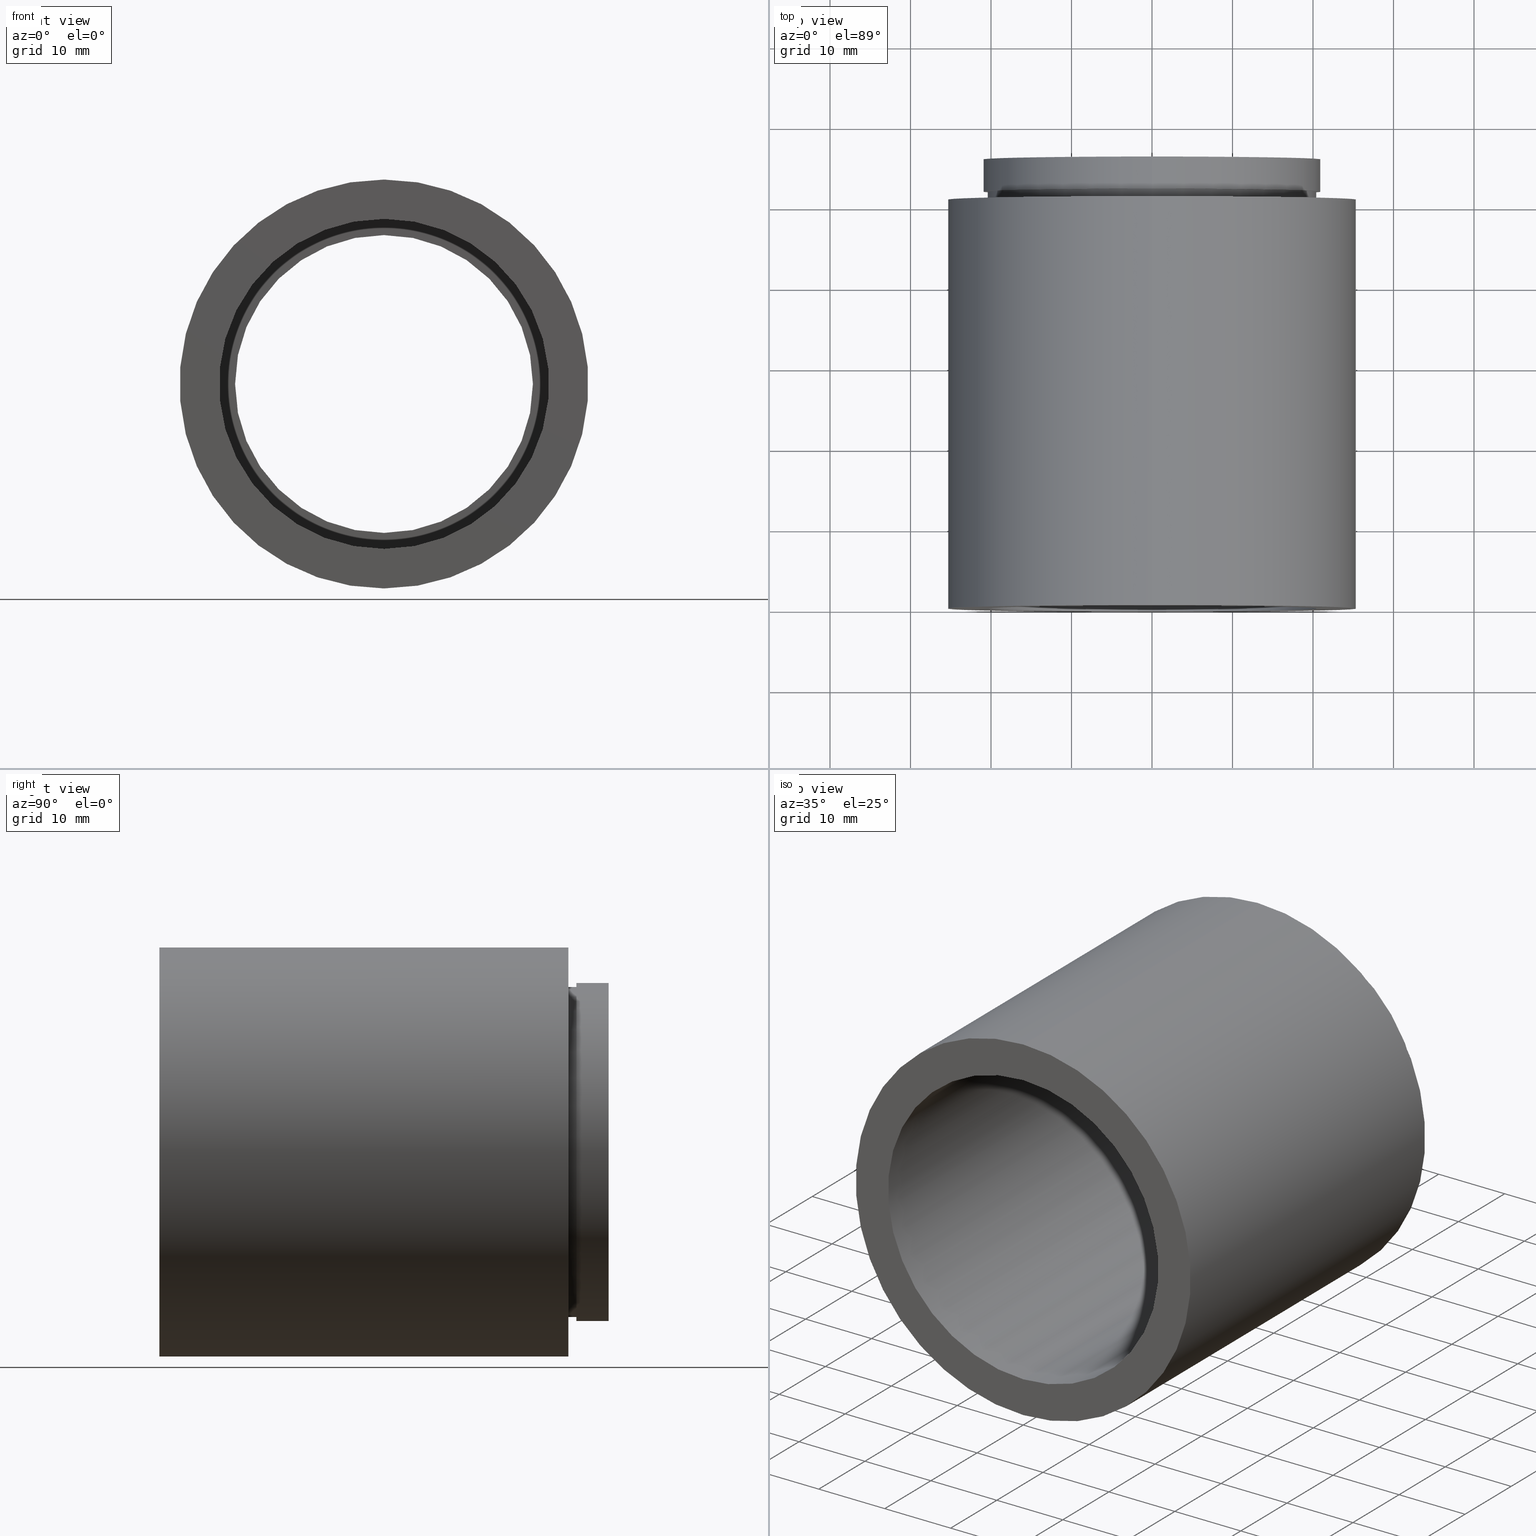
[diagram: canonical four-view strip — front | top / right | iso, engineering-drawing reading convention]
A machine part, canonical four-view strip (front | top / right | iso — engineering-drawing reading convention). The complete STEP part file that produces these views, byte-faithful:
ISO-10303-21;
HEADER;
FILE_DESCRIPTION (( 'STEP AP214' ),
    '1' );
FILE_NAME ('503023.STEP',
    '2019-09-05T05:34:05',
    ( '' ),
    ( '' ),
    'SwSTEP 2.0',
    'SolidWorks 2016',
    '' );
FILE_SCHEMA (( 'AUTOMOTIVE_DESIGN' ));
ENDSEC;

DATA;
#1 = ORIENTED_EDGE ( 'NONE', *, *, #191, .F. ) ;
#2 = VERTEX_POINT ( 'NONE', #121 ) ;
#3 =( LENGTH_UNIT ( ) NAMED_UNIT ( * ) SI_UNIT ( .MILLI., .METRE. ) );
#4 = PRESENTATION_LAYER_ASSIGNMENT (  '', '', ( #137 ) ) ;
#5 = LINE ( 'NONE', #564, #296 ) ;
#6 =( NAMED_UNIT ( * ) PLANE_ANGLE_UNIT ( ) SI_UNIT ( $, .RADIAN. ) );
#7 = MECHANICAL_DESIGN_GEOMETRIC_PRESENTATION_REPRESENTATION (  '', ( #200 ), #393 ) ;
#8 = CARTESIAN_POINT ( 'NONE',  ( 0.0000000000000000000, 51.79999999999998300, 0.0000000000000000000 ) ) ;
#9 = DIRECTION ( 'NONE',  ( 0.0000000000000000000, -1.000000000000000000, 0.0000000000000000000 ) ) ;
#10 = AXIS2_PLACEMENT_3D ( 'NONE', #438, #198, #152 ) ;
#11 = ORIENTED_EDGE ( 'NONE', *, *, #155, .T. ) ;
#12 = ORIENTED_EDGE ( 'NONE', *, *, #153, .F. ) ;
#13 = DIRECTION ( 'NONE',  ( 0.0000000000000000000, -0.0000000000000000000, -1.000000000000000000 ) ) ;
#14 = CYLINDRICAL_SURFACE ( 'NONE', #559, 18.50000000000001100 ) ;
#15 = DIRECTION ( 'NONE',  ( 0.0000000000000000000, 0.0000000000000000000, 1.000000000000000000 ) ) ;
#16 = CARTESIAN_POINT ( 'NONE',  ( 0.0000000000000000000, 55.79999999999999000, 0.0000000000000000000 ) ) ;
#17 = MECHANICAL_DESIGN_GEOMETRIC_PRESENTATION_REPRESENTATION (  '', ( #137 ), #573 ) ;
#18 = VERTEX_POINT ( 'NONE', #231 ) ;
#19 = ORIENTED_EDGE ( 'NONE', *, *, #624, .T. ) ;
#20 = CYLINDRICAL_SURFACE ( 'NONE', #346, 25.40000000000001600 ) ;
#21 = APPLICATION_PROTOCOL_DEFINITION ( 'draft international standard', 'automotive_design', 1998, #328 ) ;
#22 = DIRECTION ( 'NONE',  ( -0.0000000000000000000, 1.000000000000000000, -0.0000000000000000000 ) ) ;
#23 = DIRECTION ( 'NONE',  ( -0.0000000000000000000, 1.000000000000000000, -0.0000000000000000000 ) ) ;
#24 = ORIENTED_EDGE ( 'NONE', *, *, #351, .T. ) ;
#25 = DIRECTION ( 'NONE',  ( -0.0000000000000000000, 1.000000000000000000, -0.0000000000000000000 ) ) ;
#26 = VERTEX_POINT ( 'NONE', #278 ) ;
#27 = CIRCLE ( 'NONE', #140, 20.50000000000001100 ) ;
#28 = UNCERTAINTY_MEASURE_WITH_UNIT (LENGTH_MEASURE( 1.000000000000000100E-005 ), #461, 'distance_accuracy_value', 'NONE');
#29 = AXIS2_PLACEMENT_3D ( 'NONE', #350, #388, #580 ) ;
#30 = CARTESIAN_POINT ( 'NONE',  ( 0.0000000000000000000, 47.79999999999998300, 21.10000000000001200 ) ) ;
#31 = DIRECTION ( 'NONE',  ( 0.0000000000000000000, 0.0000000000000000000, 1.000000000000000000 ) ) ;
#32 = DIRECTION ( 'NONE',  ( -0.0000000000000000000, 1.000000000000000000, -0.0000000000000000000 ) ) ;
#33 = ORIENTED_EDGE ( 'NONE', *, *, #373, .T. ) ;
#34 = ORIENTED_EDGE ( 'NONE', *, *, #191, .T. ) ;
#35 = EDGE_CURVE ( 'NONE', #565, #611, #602, .T. ) ;
#36 = SURFACE_SIDE_STYLE ('',( #507 ) ) ;
#37 = SURFACE_STYLE_FILL_AREA ( #496 ) ;
#38 = DIRECTION ( 'NONE',  ( 0.0000000000000000000, 0.0000000000000000000, 1.000000000000000000 ) ) ;
#39 = ADVANCED_FACE ( 'NONE', ( #523, #392 ), #599, .F. ) ;
#40 = PRODUCT ( '503023', '503023', '', ( #192 ) ) ;
#41 = AXIS2_PLACEMENT_3D ( 'NONE', #609, #433, #92 ) ;
#42 = ADVANCED_FACE ( 'NONE', ( #293, #279 ), #504, .F. ) ;
#43 = VERTEX_POINT ( 'NONE', #460 ) ;
#44 =( GEOMETRIC_REPRESENTATION_CONTEXT ( 3 ) GLOBAL_UNCERTAINTY_ASSIGNED_CONTEXT ( ( #106 ) ) GLOBAL_UNIT_ASSIGNED_CONTEXT ( ( #96, #574, #398 ) ) REPRESENTATION_CONTEXT ( 'NONE', 'WORKASPACE' ) );
#45 = EDGE_CURVE ( 'NONE', #444, #450, #503, .T. ) ;
#46 = DIRECTION ( 'NONE',  ( -0.0000000000000000000, 1.000000000000000000, -0.0000000000000000000 ) ) ;
#47 =( NAMED_UNIT ( * ) SI_UNIT ( $, .STERADIAN. ) SOLID_ANGLE_UNIT ( ) );
#48 = EDGE_CURVE ( 'NONE', #610, #565, #479, .T. ) ;
#49 = DIRECTION ( 'NONE',  ( -0.0000000000000000000, 1.000000000000000000, -0.0000000000000000000 ) ) ;
#50 = CYLINDRICAL_SURFACE ( 'NONE', #404, 21.10000000000001200 ) ;
#51 = MECHANICAL_DESIGN_GEOMETRIC_PRESENTATION_REPRESENTATION (  '', ( #232 ), #285 ) ;
#52 = CARTESIAN_POINT ( 'NONE',  ( 0.0000000000000000000, 51.79999999999998300, 20.50000000000001100 ) ) ;
#53 = CIRCLE ( 'NONE', #54, 20.50000000000001400 ) ;
#54 = AXIS2_PLACEMENT_3D ( 'NONE', #615, #475, #441 ) ;
#55 = SURFACE_STYLE_FILL_AREA ( #538 ) ;
#56 =( LENGTH_UNIT ( ) NAMED_UNIT ( * ) SI_UNIT ( .MILLI., .METRE. ) );
#57 = CARTESIAN_POINT ( 'NONE',  ( 20.50000000000002100, 47.79999999999998300, 0.0000000000000000000 ) ) ;
#58 = DIRECTION ( 'NONE',  ( 0.0000000000000000000, -0.0000000000000000000, -1.000000000000000000 ) ) ;
#59 = ORIENTED_EDGE ( 'NONE', *, *, #386, .T. ) ;
#60 = CARTESIAN_POINT ( 'NONE',  ( 0.0000000000000000000, 50.79999999999998300, 0.0000000000000000000 ) ) ;
#61 = ORIENTED_EDGE ( 'NONE', *, *, #569, .T. ) ;
#62 = PRESENTATION_LAYER_ASSIGNMENT (  '', '', ( #246 ) ) ;
#63 = CIRCLE ( 'NONE', #596, 25.40000000000001300 ) ;
#64 = DIRECTION ( 'NONE',  ( 0.0000000000000000000, 0.0000000000000000000, 1.000000000000000000 ) ) ;
#65 = FACE_OUTER_BOUND ( 'NONE', #295, .T. ) ;
#66 = SURFACE_STYLE_USAGE ( .BOTH. , #330 ) ;
#67 =( GEOMETRIC_REPRESENTATION_CONTEXT ( 3 ) GLOBAL_UNCERTAINTY_ASSIGNED_CONTEXT ( ( #434 ) ) GLOBAL_UNIT_ASSIGNED_CONTEXT ( ( #3, #266, #261 ) ) REPRESENTATION_CONTEXT ( 'NONE', 'WORKASPACE' ) );
#68 = CARTESIAN_POINT ( 'NONE',  ( 0.0000000000000000000, 48.79999999999998300, 18.50000000000001100 ) ) ;
#69 = AXIS2_PLACEMENT_3D ( 'NONE', #138, #337, #472 ) ;
#70 = EDGE_LOOP ( 'NONE', ( #119, #163, #71, #135 ) ) ;
#71 = ORIENTED_EDGE ( 'NONE', *, *, #233, .T. ) ;
#72 = DIRECTION ( 'NONE',  ( 0.0000000000000000000, 0.0000000000000000000, 1.000000000000000000 ) ) ;
#73 = DIRECTION ( 'NONE',  ( -0.0000000000000000000, 1.000000000000000000, -0.0000000000000000000 ) ) ;
#74 = VECTOR ( 'NONE', #254, 1000.000000000000000 ) ;
#75 = EDGE_CURVE ( 'NONE', #188, #18, #236, .T. ) ;
#76 =( NAMED_UNIT ( * ) PLANE_ANGLE_UNIT ( ) SI_UNIT ( $, .RADIAN. ) );
#77 = DIRECTION ( 'NONE',  ( 0.0000000000000000000, 0.0000000000000000000, 1.000000000000000000 ) ) ;
#78 = FILL_AREA_STYLE ('',( #557 ) ) ;
#79 = CARTESIAN_POINT ( 'NONE',  ( 0.0000000000000000000, 161.3761669434274500, 18.50000000000001100 ) ) ;
#80 = STYLED_ITEM ( 'NONE', ( #132 ), #469 ) ;
#81 = PRESENTATION_STYLE_ASSIGNMENT (( #431 ) ) ;
#82 = AXIS2_PLACEMENT_3D ( 'NONE', #332, #23, #286 ) ;
#83 = DIRECTION ( 'NONE',  ( -0.0000000000000000000, 1.000000000000000000, -0.0000000000000000000 ) ) ;
#84 = ORIENTED_EDGE ( 'NONE', *, *, #624, .F. ) ;
#85 = CARTESIAN_POINT ( 'NONE',  ( 0.0000000000000000000, 161.3761669434274500, 0.0000000000000000000 ) ) ;
#86 = COLOUR_RGB ( '',1.000000000000000000, 1.000000000000000000, 1.000000000000000000 ) ;
#87 = AXIS2_PLACEMENT_3D ( 'NONE', #437, #347, #566 ) ;
#88 = ADVANCED_FACE ( 'NONE', ( #406 ), #50, .F. ) ;
#89 = CARTESIAN_POINT ( 'NONE',  ( 0.0000000000000000000, 55.79999999999999000, 0.0000000000000000000 ) ) ;
#90 = ADVANCED_FACE ( 'NONE', ( #463 ), #146, .F. ) ;
#91 = VERTEX_POINT ( 'NONE', #558 ) ;
#92 = DIRECTION ( 'NONE',  ( 0.0000000000000000000, 0.0000000000000000000, 1.000000000000000000 ) ) ;
#93 = ORIENTED_EDGE ( 'NONE', *, *, #569, .F. ) ;
#94 = CYLINDRICAL_SURFACE ( 'NONE', #220, 20.50000000000002100 ) ;
#95 =( GEOMETRIC_REPRESENTATION_CONTEXT ( 3 ) GLOBAL_UNCERTAINTY_ASSIGNED_CONTEXT ( ( #417 ) ) GLOBAL_UNIT_ASSIGNED_CONTEXT ( ( #168, #6, #540 ) ) REPRESENTATION_CONTEXT ( 'NONE', 'WORKASPACE' ) );
#96 =( LENGTH_UNIT ( ) NAMED_UNIT ( * ) SI_UNIT ( .MILLI., .METRE. ) );
#97 = DIRECTION ( 'NONE',  ( -0.0000000000000000000, 1.000000000000000000, -0.0000000000000000000 ) ) ;
#98 = ADVANCED_FACE ( 'NONE', ( #349 ), #395, .T. ) ;
#99 = DIRECTION ( 'NONE',  ( 0.0000000000000000000, 0.0000000000000000000, 1.000000000000000000 ) ) ;
#100 = EDGE_LOOP ( 'NONE', ( #514, #361 ) ) ;
#101 = CARTESIAN_POINT ( 'NONE',  ( 0.0000000000000000000, 55.79999999999999000, 0.0000000000000000000 ) ) ;
#102 = COLOUR_RGB ( '',1.000000000000000000, 1.000000000000000000, 1.000000000000000000 ) ;
#103 = AXIS2_PLACEMENT_3D ( 'NONE', #275, #178, #15 ) ;
#104 = DIRECTION ( 'NONE',  ( -0.0000000000000000000, 1.000000000000000000, -0.0000000000000000000 ) ) ;
#105 = AXIS2_PLACEMENT_3D ( 'NONE', #541, #9, #317 ) ;
#106 = UNCERTAINTY_MEASURE_WITH_UNIT (LENGTH_MEASURE( 1.000000000000000100E-005 ), #96, 'distance_accuracy_value', 'NONE');
#107 = EDGE_LOOP ( 'NONE', ( #172, #616 ) ) ;
#108 = ORIENTED_EDGE ( 'NONE', *, *, #418, .T. ) ;
#109 = FACE_OUTER_BOUND ( 'NONE', #440, .T. ) ;
#110 = DIRECTION ( 'NONE',  ( -0.0000000000000000000, 1.000000000000000000, -0.0000000000000000000 ) ) ;
#111 = VERTEX_POINT ( 'NONE', #244 ) ;
#112 = AXIS2_PLACEMENT_3D ( 'NONE', #419, #383, #141 ) ;
#113 = EDGE_LOOP ( 'NONE', ( #227, #108, #59, #368 ) ) ;
#114 = FILL_AREA_STYLE_COLOUR ( '', #447 ) ;
#115 = FACE_BOUND ( 'NONE', #127, .T. ) ;
#116 = FACE_OUTER_BOUND ( 'NONE', #464, .T. ) ;
#117 = VECTOR ( 'NONE', #110, 1000.000000000000000 ) ;
#118 =( NAMED_UNIT ( * ) PLANE_ANGLE_UNIT ( ) SI_UNIT ( $, .RADIAN. ) );
#119 = ORIENTED_EDGE ( 'NONE', *, *, #155, .F. ) ;
#120 = EDGE_CURVE ( 'NONE', #204, #188, #579, .T. ) ;
#121 = CARTESIAN_POINT ( 'NONE',  ( 0.0000000000000000000, 51.79999999999998300, 21.00000000000001400 ) ) ;
#122 = SURFACE_STYLE_USAGE ( .BOTH. , #230 ) ;
#123 = PRESENTATION_LAYER_ASSIGNMENT (  '', '', ( #520 ) ) ;
#124 = DIRECTION ( 'NONE',  ( 0.0000000000000000000, 0.0000000000000000000, 1.000000000000000000 ) ) ;
#125 = AXIS2_PLACEMENT_3D ( 'NONE', #344, #394, #99 ) ;
#126 = DIRECTION ( 'NONE',  ( 0.0000000000000000000, 0.0000000000000000000, 1.000000000000000000 ) ) ;
#127 = EDGE_LOOP ( 'NONE', ( #323, #546 ) ) ;
#128 = EDGE_LOOP ( 'NONE', ( #93, #354, #567, #136 ) ) ;
#129 = CARTESIAN_POINT ( 'NONE',  ( 2.584004746200916600E-015, 161.3761669434274500, -21.10000000000001200 ) ) ;
#130 = CIRCLE ( 'NONE', #294, 21.10000000000001200 ) ;
#131 = EDGE_CURVE ( 'NONE', #26, #338, #5, .T. ) ;
#132 = PRESENTATION_STYLE_ASSIGNMENT (( #360 ) ) ;
#133 = CARTESIAN_POINT ( 'NONE',  ( 0.0000000000000000000, -2.775557561562891400E-014, 0.0000000000000000000 ) ) ;
#134 = FILL_AREA_STYLE ('',( #549 ) ) ;
#135 = ORIENTED_EDGE ( 'NONE', *, *, #473, .F. ) ;
#136 = ORIENTED_EDGE ( 'NONE', *, *, #75, .T. ) ;
#137 = STYLED_ITEM ( 'NONE', ( #500 ), #572 ) ;
#138 = CARTESIAN_POINT ( 'NONE',  ( 0.0000000000000000000, 161.3761669434274500, 0.0000000000000000000 ) ) ;
#139 = LINE ( 'NONE', #129, #593 ) ;
#140 = AXIS2_PLACEMENT_3D ( 'NONE', #284, #25, #512 ) ;
#141 = DIRECTION ( 'NONE',  ( 1.000000000000000000, 0.0000000000000000000, 0.0000000000000000000 ) ) ;
#142 = CARTESIAN_POINT ( 'NONE',  ( 0.0000000000000000000, -2.775557561562891400E-014, 0.0000000000000000000 ) ) ;
#143 = COLOUR_RGB ( '',1.000000000000000000, 1.000000000000000000, 1.000000000000000000 ) ;
#144 = DIRECTION ( 'NONE',  ( -0.0000000000000000000, 1.000000000000000000, -0.0000000000000000000 ) ) ;
#145 = CIRCLE ( 'NONE', #505, 25.40000000000002000 ) ;
#146 = CYLINDRICAL_SURFACE ( 'NONE', #69, 18.50000000000001100 ) ;
#147 = PRODUCT_RELATED_PRODUCT_CATEGORY ( 'part', '', ( #40 ) ) ;
#148 = FACE_BOUND ( 'NONE', #107, .T. ) ;
#149 = DIRECTION ( 'NONE',  ( -0.0000000000000000000, 1.000000000000000000, -0.0000000000000000000 ) ) ;
#150 = AXIS2_PLACEMENT_3D ( 'NONE', #133, #384, #511 ) ;
#151 = DIRECTION ( 'NONE',  ( 0.0000000000000000000, 0.0000000000000000000, 1.000000000000000000 ) ) ;
#152 = DIRECTION ( 'NONE',  ( 0.0000000000000000000, 0.0000000000000000000, 1.000000000000000000 ) ) ;
#153 = EDGE_CURVE ( 'NONE', #610, #111, #466, .T. ) ;
#154 = EDGE_LOOP ( 'NONE', ( #577, #595 ) ) ;
#155 = EDGE_CURVE ( 'NONE', #91, #252, #452, .T. ) ;
#156 = CARTESIAN_POINT ( 'NONE',  ( 0.0000000000000000000, 48.79999999999998300, 0.0000000000000000000 ) ) ;
#157 = PRESENTATION_STYLE_ASSIGNMENT (( #370 ) ) ;
#158 = CYLINDRICAL_SURFACE ( 'NONE', #493, 21.00000000000001400 ) ;
#159 = DIRECTION ( 'NONE',  ( 0.0000000000000000000, 0.0000000000000000000, 1.000000000000000000 ) ) ;
#160 = EDGE_CURVE ( 'NONE', #429, #252, #27, .T. ) ;
#161 = AXIS2_PLACEMENT_3D ( 'NONE', #449, #225, #169 ) ;
#162 = ORIENTED_EDGE ( 'NONE', *, *, #581, .T. ) ;
#163 = ORIENTED_EDGE ( 'NONE', *, *, #527, .T. ) ;
#164 = CARTESIAN_POINT ( 'NONE',  ( 0.0000000000000000000, 47.79999999999998300, 0.0000000000000000000 ) ) ;
#165 = AXIS2_PLACEMENT_3D ( 'NONE', #101, #202, #151 ) ;
#166 = CIRCLE ( 'NONE', #477, 20.50000000000002100 ) ;
#167 = DIRECTION ( 'NONE',  ( 0.0000000000000000000, 0.0000000000000000000, 1.000000000000000000 ) ) ;
#168 =( LENGTH_UNIT ( ) NAMED_UNIT ( * ) SI_UNIT ( .MILLI., .METRE. ) );
#169 = DIRECTION ( 'NONE',  ( 0.0000000000000000000, 0.0000000000000000000, 1.000000000000000000 ) ) ;
#170 = CARTESIAN_POINT ( 'NONE',  ( 0.0000000000000000000, 50.79999999999998300, 20.50000000000001400 ) ) ;
#171 = ORIENTED_EDGE ( 'NONE', *, *, #160, .F. ) ;
#172 = ORIENTED_EDGE ( 'NONE', *, *, #305, .F. ) ;
#173 = CIRCLE ( 'NONE', #82, 25.40000000000002000 ) ;
#174 = LINE ( 'NONE', #446, #311 ) ;
#175 =( GEOMETRIC_REPRESENTATION_CONTEXT ( 3 ) GLOBAL_UNCERTAINTY_ASSIGNED_CONTEXT ( ( #28 ) ) GLOBAL_UNIT_ASSIGNED_CONTEXT ( ( #461, #76, #322 ) ) REPRESENTATION_CONTEXT ( 'NONE', 'WORKASPACE' ) );
#176 = UNCERTAINTY_MEASURE_WITH_UNIT (LENGTH_MEASURE( 1.000000000000000100E-005 ), #508, 'distance_accuracy_value', 'NONE');
#177 = AXIS2_PLACEMENT_3D ( 'NONE', #250, #97, #439 ) ;
#178 = DIRECTION ( 'NONE',  ( -0.0000000000000000000, 1.000000000000000000, -0.0000000000000000000 ) ) ;
#179 = SURFACE_STYLE_FILL_AREA ( #134 ) ;
#180 = ORIENTED_EDGE ( 'NONE', *, *, #45, .F. ) ;
#181 = EDGE_CURVE ( 'NONE', #524, #414, #442, .T. ) ;
#182 = DIRECTION ( 'NONE',  ( -0.0000000000000000000, 1.000000000000000000, -0.0000000000000000000 ) ) ;
#183 = CARTESIAN_POINT ( 'NONE',  ( 2.571758278209443600E-015, 161.3761669434274500, -21.00000000000001400 ) ) ;
#184 = CIRCLE ( 'NONE', #371, 21.10000000000001200 ) ;
#185 =( NAMED_UNIT ( * ) SI_UNIT ( $, .STERADIAN. ) SOLID_ANGLE_UNIT ( ) );
#186 = AXIS2_PLACEMENT_3D ( 'NONE', #89, #203, #374 ) ;
#187 =( NAMED_UNIT ( * ) SI_UNIT ( $, .STERADIAN. ) SOLID_ANGLE_UNIT ( ) );
#188 = VERTEX_POINT ( 'NONE', #241 ) ;
#189 = ORIENTED_EDGE ( 'NONE', *, *, #233, .F. ) ;
#190 = SHAPE_DEFINITION_REPRESENTATION ( #490, #547 ) ;
#191 = EDGE_CURVE ( 'NONE', #196, #26, #173, .T. ) ;
#192 = PRODUCT_CONTEXT ( 'NONE', #328, 'mechanical' ) ;
#193 = CARTESIAN_POINT ( 'NONE',  ( 2.510525938252075300E-015, 161.3761669434274500, -20.50000000000001100 ) ) ;
#194 = DIRECTION ( 'NONE',  ( -0.0000000000000000000, 1.000000000000000000, -0.0000000000000000000 ) ) ;
#195 = ORIENTED_EDGE ( 'NONE', *, *, #45, .T. ) ;
#196 = VERTEX_POINT ( 'NONE', #607 ) ;
#197 = AXIS2_PLACEMENT_3D ( 'NONE', #57, #487, #58 ) ;
#198 = DIRECTION ( 'NONE',  ( -0.0000000000000000000, 1.000000000000000000, -0.0000000000000000000 ) ) ;
#199 = CIRCLE ( 'NONE', #150, 20.50000000000002100 ) ;
#200 = STYLED_ITEM ( 'NONE', ( #81 ), #90 ) ;
#201 = CARTESIAN_POINT ( 'NONE',  ( 0.0000000000000000000, -2.775557561562891400E-014, 20.50000000000002100 ) ) ;
#202 = DIRECTION ( 'NONE',  ( -0.0000000000000000000, 1.000000000000000000, -0.0000000000000000000 ) ) ;
#203 = DIRECTION ( 'NONE',  ( -0.0000000000000000000, 1.000000000000000000, -0.0000000000000000000 ) ) ;
#204 = VERTEX_POINT ( 'NONE', #30 ) ;
#205 = EDGE_LOOP ( 'NONE', ( #211, #61, #316, #483 ) ) ;
#206 = PRESENTATION_STYLE_ASSIGNMENT (( #66 ) ) ;
#207 = CARTESIAN_POINT ( 'NONE',  ( 0.0000000000000000000, 51.79999999999998300, 0.0000000000000000000 ) ) ;
#208 = CARTESIAN_POINT ( 'NONE',  ( 2.571758278209443600E-015, 55.79999999999999000, -21.00000000000001400 ) ) ;
#209 = PRESENTATION_LAYER_ASSIGNMENT (  '', '', ( #80 ) ) ;
#210 = DIRECTION ( 'NONE',  ( -0.0000000000000000000, 1.000000000000000000, -0.0000000000000000000 ) ) ;
#211 = ORIENTED_EDGE ( 'NONE', *, *, #351, .F. ) ;
#212 = EDGE_LOOP ( 'NONE', ( #162, #561 ) ) ;
#213 = CARTESIAN_POINT ( 'NONE',  ( 0.0000000000000000000, 47.79999999999998300, 0.0000000000000000000 ) ) ;
#214 = FACE_BOUND ( 'NONE', #154, .T. ) ;
#215 =( NAMED_UNIT ( * ) PLANE_ANGLE_UNIT ( ) SI_UNIT ( $, .RADIAN. ) );
#216 = EDGE_CURVE ( 'NONE', #524, #251, #199, .T. ) ;
#217 = CARTESIAN_POINT ( 'NONE',  ( 2.510525938252076500E-015, -2.775557561562891400E-014, -20.50000000000002100 ) ) ;
#218 = DIRECTION ( 'NONE',  ( 0.0000000000000000000, 0.0000000000000000000, 1.000000000000000000 ) ) ;
#219 = DIRECTION ( 'NONE',  ( 0.0000000000000000000, 0.0000000000000000000, 1.000000000000000000 ) ) ;
#220 = AXIS2_PLACEMENT_3D ( 'NONE', #277, #283, #375 ) ;
#221 = DIRECTION ( 'NONE',  ( -0.0000000000000000000, 1.000000000000000000, -0.0000000000000000000 ) ) ;
#222 = ORIENTED_EDGE ( 'NONE', *, *, #581, .F. ) ;
#223 = VECTOR ( 'NONE', #22, 1000.000000000000000 ) ;
#224 = AXIS2_PLACEMENT_3D ( 'NONE', #613, #149, #575 ) ;
#225 = DIRECTION ( 'NONE',  ( -0.0000000000000000000, 1.000000000000000000, -0.0000000000000000000 ) ) ;
#226 = CARTESIAN_POINT ( 'NONE',  ( 18.50000000000001100, 55.79999999999998300, 0.0000000000000000000 ) ) ;
#227 = ORIENTED_EDGE ( 'NONE', *, *, #276, .F. ) ;
#228 = ORIENTED_EDGE ( 'NONE', *, *, #420, .T. ) ;
#229 = EDGE_CURVE ( 'NONE', #338, #623, #63, .T. ) ;
#230 = SURFACE_SIDE_STYLE ('',( #274 ) ) ;
#231 = CARTESIAN_POINT ( 'NONE',  ( 2.584004746200916600E-015, 48.79999999999998300, -21.10000000000001200 ) ) ;
#232 = STYLED_ITEM ( 'NONE', ( #555 ), #343 ) ;
#233 = EDGE_CURVE ( 'NONE', #480, #429, #401, .T. ) ;
#234 = DIRECTION ( 'NONE',  ( 0.0000000000000000000, -1.000000000000000000, 0.0000000000000000000 ) ) ;
#235 = DIRECTION ( 'NONE',  ( 0.0000000000000000000, 0.0000000000000000000, 1.000000000000000000 ) ) ;
#236 = CIRCLE ( 'NONE', #554, 21.10000000000001200 ) ;
#237 =( LENGTH_UNIT ( ) NAMED_UNIT ( * ) SI_UNIT ( .MILLI., .METRE. ) );
#238 = EDGE_LOOP ( 'NONE', ( #339, #195, #369, #263 ) ) ;
#239 = SURFACE_STYLE_FILL_AREA ( #588 ) ;
#240 = EDGE_CURVE ( 'NONE', #2, #444, #300, .T. ) ;
#241 = CARTESIAN_POINT ( 'NONE',  ( 0.0000000000000000000, 48.79999999999998300, 21.10000000000001200 ) ) ;
#242 = CIRCLE ( 'NONE', #186, 21.00000000000001400 ) ;
#243 = CARTESIAN_POINT ( 'NONE',  ( 0.0000000000000000000, 48.79999999999998300, 0.0000000000000000000 ) ) ;
#244 = CARTESIAN_POINT ( 'NONE',  ( 2.265596578422604600E-015, 48.79999999999998300, -18.50000000000001100 ) ) ;
#245 = EDGE_LOOP ( 'NONE', ( #407, #1 ) ) ;
#246 = STYLED_ITEM ( 'NONE', ( #206 ), #547 ) ;
#247 =( NAMED_UNIT ( * ) PLANE_ANGLE_UNIT ( ) SI_UNIT ( $, .RADIAN. ) );
#248 = CYLINDRICAL_SURFACE ( 'NONE', #551, 21.00000000000001400 ) ;
#249 = APPLICATION_PROTOCOL_DEFINITION ( 'draft international standard', 'automotive_design', 1998, #380 ) ;
#250 = CARTESIAN_POINT ( 'NONE',  ( 0.0000000000000000000, 51.79999999999998300, 0.0000000000000000000 ) ) ;
#251 = VERTEX_POINT ( 'NONE', #201 ) ;
#252 = VERTEX_POINT ( 'NONE', #522 ) ;
#253 = CIRCLE ( 'NONE', #87, 25.40000000000001300 ) ;
#254 = DIRECTION ( 'NONE',  ( -0.0000000000000000000, 1.000000000000000000, -0.0000000000000000000 ) ) ;
#255 = CIRCLE ( 'NONE', #303, 20.50000000000001100 ) ;
#256 = ADVANCED_FACE ( 'NONE', ( #341, #214 ), #529, .F. ) ;
#257 = ORIENTED_EDGE ( 'NONE', *, *, #48, .T. ) ;
#258 = EDGE_CURVE ( 'NONE', #196, #623, #415, .T. ) ;
#259 = DIRECTION ( 'NONE',  ( -0.0000000000000000000, 1.000000000000000000, -0.0000000000000000000 ) ) ;
#260 = PRESENTATION_LAYER_ASSIGNMENT (  '', '', ( #358 ) ) ;
#261 =( NAMED_UNIT ( * ) SI_UNIT ( $, .STERADIAN. ) SOLID_ANGLE_UNIT ( ) );
#262 = AXIS2_PLACEMENT_3D ( 'NONE', #327, #462, #126 ) ;
#263 = ORIENTED_EDGE ( 'NONE', *, *, #489, .F. ) ;
#264 = DIRECTION ( 'NONE',  ( -0.0000000000000000000, 1.000000000000000000, -0.0000000000000000000 ) ) ;
#265 = DIRECTION ( 'NONE',  ( -0.0000000000000000000, 1.000000000000000000, -0.0000000000000000000 ) ) ;
#266 =( NAMED_UNIT ( * ) PLANE_ANGLE_UNIT ( ) SI_UNIT ( $, .RADIAN. ) );
#267 = MANIFOLD_SOLID_BREP ( '��ת1', #324 ) ;
#268 = ORIENTED_EDGE ( 'NONE', *, *, #181, .F. ) ;
#269 = DIRECTION ( 'NONE',  ( -0.0000000000000000000, 1.000000000000000000, -0.0000000000000000000 ) ) ;
#270 = EDGE_LOOP ( 'NONE', ( #486, #376, #345, #583 ) ) ;
#271 = DIRECTION ( 'NONE',  ( -0.0000000000000000000, 1.000000000000000000, -0.0000000000000000000 ) ) ;
#272 = DIRECTION ( 'NONE',  ( -0.0000000000000000000, 1.000000000000000000, -0.0000000000000000000 ) ) ;
#273 = AXIS2_PLACEMENT_3D ( 'NONE', #60, #366, #64 ) ;
#274 = SURFACE_STYLE_FILL_AREA ( #367 ) ;
#275 = CARTESIAN_POINT ( 'NONE',  ( 0.0000000000000000000, -2.775557561562891400E-014, 0.0000000000000000000 ) ) ;
#276 = EDGE_CURVE ( 'NONE', #111, #610, #498, .T. ) ;
#277 = CARTESIAN_POINT ( 'NONE',  ( 0.0000000000000000000, 161.3761669434274500, 0.0000000000000000000 ) ) ;
#278 = CARTESIAN_POINT ( 'NONE',  ( 0.0000000000000000000, -2.775557561562891400E-014, 25.40000000000002000 ) ) ;
#279 = FACE_OUTER_BOUND ( 'NONE', #100, .T. ) ;
#280 = EDGE_LOOP ( 'NONE', ( #84, #471 ) ) ;
#281 = VECTOR ( 'NONE', #144, 1000.000000000000000 ) ;
#282 = CIRCLE ( 'NONE', #161, 20.50000000000002100 ) ;
#283 = DIRECTION ( 'NONE',  ( -0.0000000000000000000, 1.000000000000000000, -0.0000000000000000000 ) ) ;
#284 = CARTESIAN_POINT ( 'NONE',  ( 0.0000000000000000000, 51.79999999999998300, 0.0000000000000000000 ) ) ;
#285 =( GEOMETRIC_REPRESENTATION_CONTEXT ( 3 ) GLOBAL_UNCERTAINTY_ASSIGNED_CONTEXT ( ( #409 ) ) GLOBAL_UNIT_ASSIGNED_CONTEXT ( ( #56, #215, #47 ) ) REPRESENTATION_CONTEXT ( 'NONE', 'WORKASPACE' ) );
#286 = DIRECTION ( 'NONE',  ( 0.0000000000000000000, 0.0000000000000000000, 1.000000000000000000 ) ) ;
#287 = VERTEX_POINT ( 'NONE', #578 ) ;
#288 = ADVANCED_FACE ( 'NONE', ( #612, #115 ), #481, .F. ) ;
#289 = SURFACE_SIDE_STYLE ('',( #179 ) ) ;
#290 = COLOUR_RGB ( '',1.000000000000000000, 1.000000000000000000, 1.000000000000000000 ) ;
#291 = LINE ( 'NONE', #362, #467 ) ;
#292 = DIRECTION ( 'NONE',  ( 0.0000000000000000000, 0.0000000000000000000, 1.000000000000000000 ) ) ;
#293 = FACE_BOUND ( 'NONE', #385, .T. ) ;
#294 = AXIS2_PLACEMENT_3D ( 'NONE', #164, #265, #219 ) ;
#295 = EDGE_LOOP ( 'NONE', ( #180, #33, #494, #445 ) ) ;
#296 = VECTOR ( 'NONE', #427, 1000.000000000000000 ) ;
#297 = AXIS2_PLACEMENT_3D ( 'NONE', #226, #234, #13 ) ;
#298 = ADVANCED_FACE ( 'NONE', ( #568 ), #424, .T. ) ;
#299 = EDGE_LOOP ( 'NONE', ( #495, #34, #413, #331 ) ) ;
#300 = CIRCLE ( 'NONE', #177, 21.00000000000001400 ) ;
#301 = CIRCLE ( 'NONE', #539, 21.10000000000001200 ) ;
#302 = DIRECTION ( 'NONE',  ( 0.0000000000000000000, 0.0000000000000000000, 1.000000000000000000 ) ) ;
#303 = AXIS2_PLACEMENT_3D ( 'NONE', #8, #485, #218 ) ;
#304 = CARTESIAN_POINT ( 'NONE',  ( 0.0000000000000000000, 55.79999999999999000, 0.0000000000000000000 ) ) ;
#305 = EDGE_CURVE ( 'NONE', #480, #91, #53, .T. ) ;
#306 = ORIENTED_EDGE ( 'NONE', *, *, #386, .F. ) ;
#307 = EDGE_LOOP ( 'NONE', ( #506, #436, #545, #618 ) ) ;
#308 = COLOUR_RGB ( '',1.000000000000000000, 1.000000000000000000, 1.000000000000000000 ) ;
#309 = CARTESIAN_POINT ( 'NONE',  ( 0.0000000000000000000, 161.3761669434274500, 0.0000000000000000000 ) ) ;
#310 = PLANE ( 'NONE',  #105 ) ;
#311 = VECTOR ( 'NONE', #104, 1000.000000000000000 ) ;
#312 = FILL_AREA_STYLE ('',( #352 ) ) ;
#313 = PLANE ( 'NONE',  #197 ) ;
#314 = MECHANICAL_DESIGN_GEOMETRIC_PRESENTATION_REPRESENTATION (  '', ( #520 ), #67 ) ;
#315 = CARTESIAN_POINT ( 'NONE',  ( 0.0000000000000000000, 161.3761669434274500, 0.0000000000000000000 ) ) ;
#316 = ORIENTED_EDGE ( 'NONE', *, *, #397, .T. ) ;
#317 = DIRECTION ( 'NONE',  ( 0.0000000000000000000, -0.0000000000000000000, -1.000000000000000000 ) ) ;
#318 = VECTOR ( 'NONE', #83, 1000.000000000000000 ) ;
#319 = EDGE_CURVE ( 'NONE', #287, #450, #488, .T. ) ;
#320 = CARTESIAN_POINT ( 'NONE',  ( 0.0000000000000000000, 161.3761669434274500, 0.0000000000000000000 ) ) ;
#321 = CARTESIAN_POINT ( 'NONE',  ( 2.265596578422604600E-015, 55.79999999999999000, -18.50000000000001100 ) ) ;
#322 =( NAMED_UNIT ( * ) SI_UNIT ( $, .STERADIAN. ) SOLID_ANGLE_UNIT ( ) );
#323 = ORIENTED_EDGE ( 'NONE', *, *, #160, .T. ) ;
#324 = CLOSED_SHELL ( 'NONE', ( #88, #621, #348, #298, #478, #90, #572, #42, #469, #288, #98, #526, #576, #39, #343, #519, #476, #256 ) ) ;
#325 = UNCERTAINTY_MEASURE_WITH_UNIT (LENGTH_MEASURE( 1.000000000000000100E-005 ), #553, 'distance_accuracy_value', 'NONE');
#326 = CARTESIAN_POINT ( 'NONE',  ( 3.110602869834278800E-015, 50.79999999999998300, -25.40000000000001300 ) ) ;
#327 = CARTESIAN_POINT ( 'NONE',  ( 25.40000000000002000, -1.454715626710879400E-014, 0.0000000000000000000 ) ) ;
#328 = APPLICATION_CONTEXT ( 'automotive_design' ) ;
#329 = EDGE_CURVE ( 'NONE', #623, #338, #253, .T. ) ;
#330 = SURFACE_SIDE_STYLE ('',( #453 ) ) ;
#331 = ORIENTED_EDGE ( 'NONE', *, *, #329, .F. ) ;
#332 = CARTESIAN_POINT ( 'NONE',  ( 0.0000000000000000000, -2.775557561562891400E-014, 0.0000000000000000000 ) ) ;
#333 = EDGE_CURVE ( 'NONE', #26, #196, #145, .T. ) ;
#334 = VECTOR ( 'NONE', #518, 1000.000000000000000 ) ;
#335 = FACE_OUTER_BOUND ( 'NONE', #270, .T. ) ;
#336 = PRESENTATION_LAYER_ASSIGNMENT (  '', '', ( #232 ) ) ;
#337 = DIRECTION ( 'NONE',  ( -0.0000000000000000000, 1.000000000000000000, -0.0000000000000000000 ) ) ;
#338 = VERTEX_POINT ( 'NONE', #620 ) ;
#339 = ORIENTED_EDGE ( 'NONE', *, *, #240, .T. ) ;
#340 = CARTESIAN_POINT ( 'NONE',  ( 0.0000000000000000000, 161.3761669434274500, 20.50000000000001100 ) ) ;
#341 = FACE_OUTER_BOUND ( 'NONE', #400, .T. ) ;
#342 = FILL_AREA_STYLE_COLOUR ( '', #430 ) ;
#343 = ADVANCED_FACE ( 'NONE', ( #377 ), #510, .F. ) ;
#344 = CARTESIAN_POINT ( 'NONE',  ( 21.00000000000001400, 51.79999999999998300, 0.0000000000000000000 ) ) ;
#345 = ORIENTED_EDGE ( 'NONE', *, *, #497, .T. ) ;
#346 = AXIS2_PLACEMENT_3D ( 'NONE', #426, #182, #235 ) ;
#347 = DIRECTION ( 'NONE',  ( -0.0000000000000000000, 1.000000000000000000, -0.0000000000000000000 ) ) ;
#348 = ADVANCED_FACE ( 'NONE', ( #356 ), #468, .T. ) ;
#349 = FACE_OUTER_BOUND ( 'NONE', #70, .T. ) ;
#350 = CARTESIAN_POINT ( 'NONE',  ( 0.0000000000000000000, 161.3761669434274500, 0.0000000000000000000 ) ) ;
#351 = EDGE_CURVE ( 'NONE', #513, #204, #184, .T. ) ;
#352 = FILL_AREA_STYLE_COLOUR ( '', #534 ) ;
#353 = ORIENTED_EDGE ( 'NONE', *, *, #240, .F. ) ;
#354 = ORIENTED_EDGE ( 'NONE', *, *, #515, .F. ) ;
#355 = DIRECTION ( 'NONE',  ( 0.0000000000000000000, 0.0000000000000000000, 1.000000000000000000 ) ) ;
#356 = FACE_OUTER_BOUND ( 'NONE', #307, .T. ) ;
#357 = CARTESIAN_POINT ( 'NONE',  ( 2.265596578422604600E-015, 161.3761669434274500, -18.50000000000001100 ) ) ;
#358 = STYLED_ITEM ( 'NONE', ( #157 ), #621 ) ;
#359 = DIRECTION ( 'NONE',  ( 0.0000000000000000000, 0.0000000000000000000, 1.000000000000000000 ) ) ;
#360 = SURFACE_STYLE_USAGE ( .BOTH. , #589 ) ;
#361 = ORIENTED_EDGE ( 'NONE', *, *, #535, .T. ) ;
#362 = CARTESIAN_POINT ( 'NONE',  ( 0.0000000000000000000, 161.3761669434274500, 21.00000000000001400 ) ) ;
#363 = UNCERTAINTY_MEASURE_WITH_UNIT (LENGTH_MEASURE( 1.000000000000000100E-005 ), #416, 'distance_accuracy_value', 'NONE');
#364 = CYLINDRICAL_SURFACE ( 'NONE', #484, 21.10000000000001200 ) ;
#365 = CARTESIAN_POINT ( 'NONE',  ( 0.0000000000000000000, 161.3761669434274500, 0.0000000000000000000 ) ) ;
#366 = DIRECTION ( 'NONE',  ( -0.0000000000000000000, 1.000000000000000000, -0.0000000000000000000 ) ) ;
#367 = FILL_AREA_STYLE ('',( #458 ) ) ;
#368 = ORIENTED_EDGE ( 'NONE', *, *, #48, .F. ) ;
#369 = ORIENTED_EDGE ( 'NONE', *, *, #319, .F. ) ;
#370 = SURFACE_STYLE_USAGE ( .BOTH. , #548 ) ;
#371 = AXIS2_PLACEMENT_3D ( 'NONE', #213, #259, #302 ) ;
#372 = CARTESIAN_POINT ( 'NONE',  ( 0.0000000000000000000, 161.3761669434274500, 0.0000000000000000000 ) ) ;
#373 = EDGE_CURVE ( 'NONE', #444, #2, #619, .T. ) ;
#374 = DIRECTION ( 'NONE',  ( 0.0000000000000000000, 0.0000000000000000000, 1.000000000000000000 ) ) ;
#375 = DIRECTION ( 'NONE',  ( 0.0000000000000000000, 0.0000000000000000000, 1.000000000000000000 ) ) ;
#376 = ORIENTED_EDGE ( 'NONE', *, *, #181, .T. ) ;
#377 = FACE_OUTER_BOUND ( 'NONE', #428, .T. ) ;
#378 =( GEOMETRIC_REPRESENTATION_CONTEXT ( 3 ) GLOBAL_UNCERTAINTY_ASSIGNED_CONTEXT ( ( #325 ) ) GLOBAL_UNIT_ASSIGNED_CONTEXT ( ( #553, #550, #185 ) ) REPRESENTATION_CONTEXT ( 'NONE', 'WORKASPACE' ) );
#379 = FACE_OUTER_BOUND ( 'NONE', #552, .T. ) ;
#380 = APPLICATION_CONTEXT ( 'automotive_design' ) ;
#381 = DIRECTION ( 'NONE',  ( 0.0000000000000000000, 0.0000000000000000000, 1.000000000000000000 ) ) ;
#382 = ORIENTED_EDGE ( 'NONE', *, *, #397, .F. ) ;
#383 = DIRECTION ( 'NONE',  ( 0.0000000000000000000, 0.0000000000000000000, 1.000000000000000000 ) ) ;
#384 = DIRECTION ( 'NONE',  ( -0.0000000000000000000, 1.000000000000000000, -0.0000000000000000000 ) ) ;
#385 = EDGE_LOOP ( 'NONE', ( #457, #306 ) ) ;
#386 = EDGE_CURVE ( 'NONE', #611, #565, #586, .T. ) ;
#387 = DIRECTION ( 'NONE',  ( 0.0000000000000000000, 0.0000000000000000000, 1.000000000000000000 ) ) ;
#388 = DIRECTION ( 'NONE',  ( -0.0000000000000000000, 1.000000000000000000, -0.0000000000000000000 ) ) ;
#389 = MECHANICAL_DESIGN_GEOMETRIC_PRESENTATION_REPRESENTATION (  '', ( #358 ), #378 ) ;
#390 = FILL_AREA_STYLE ('',( #342 ) ) ;
#391 = VECTOR ( 'NONE', #269, 1000.000000000000000 ) ;
#392 = FACE_BOUND ( 'NONE', #212, .T. ) ;
#393 =( GEOMETRIC_REPRESENTATION_CONTEXT ( 3 ) GLOBAL_UNCERTAINTY_ASSIGNED_CONTEXT ( ( #499 ) ) GLOBAL_UNIT_ASSIGNED_CONTEXT ( ( #237, #247, #187 ) ) REPRESENTATION_CONTEXT ( 'NONE', 'WORKASPACE' ) );
#394 = DIRECTION ( 'NONE',  ( -0.0000000000000000000, 1.000000000000000000, 0.0000000000000000000 ) ) ;
#395 = CYLINDRICAL_SURFACE ( 'NONE', #614, 20.50000000000001100 ) ;
#396 = CARTESIAN_POINT ( 'NONE',  ( 0.0000000000000000000, 50.79999999999998300, 0.0000000000000000000 ) ) ;
#397 = EDGE_CURVE ( 'NONE', #18, #188, #301, .T. ) ;
#398 =( NAMED_UNIT ( * ) SI_UNIT ( $, .STERADIAN. ) SOLID_ANGLE_UNIT ( ) );
#399 = DIRECTION ( 'NONE',  ( 0.0000000000000000000, 0.0000000000000000000, 1.000000000000000000 ) ) ;
#400 = EDGE_LOOP ( 'NONE', ( #530, #382 ) ) ;
#401 = LINE ( 'NONE', #340, #281 ) ;
#402 = FACE_OUTER_BOUND ( 'NONE', #128, .T. ) ;
#403 = AXIS2_PLACEMENT_3D ( 'NONE', #207, #49, #159 ) ;
#404 = AXIS2_PLACEMENT_3D ( 'NONE', #320, #272, #387 ) ;
#405 = CARTESIAN_POINT ( 'NONE',  ( 2.584004746200916600E-015, 47.79999999999998300, -21.10000000000001200 ) ) ;
#406 = FACE_OUTER_BOUND ( 'NONE', #205, .T. ) ;
#407 = ORIENTED_EDGE ( 'NONE', *, *, #333, .F. ) ;
#408 = CARTESIAN_POINT ( 'NONE',  ( 2.510525938252076500E-015, 47.79999999999998300, -20.50000000000002100 ) ) ;
#409 = UNCERTAINTY_MEASURE_WITH_UNIT (LENGTH_MEASURE( 1.000000000000000100E-005 ), #56, 'distance_accuracy_value', 'NONE');
#410 = DIRECTION ( 'NONE',  ( 0.0000000000000000000, 0.0000000000000000000, 1.000000000000000000 ) ) ;
#411 = PRODUCT_DEFINITION ( 'δ֪', '', #601, #603 ) ;
#412 = SURFACE_STYLE_USAGE ( .BOTH. , #451 ) ;
#413 = ORIENTED_EDGE ( 'NONE', *, *, #131, .T. ) ;
#414 = VERTEX_POINT ( 'NONE', #408 ) ;
#415 = LINE ( 'NONE', #525, #74 ) ;
#416 =( LENGTH_UNIT ( ) NAMED_UNIT ( * ) SI_UNIT ( .MILLI., .METRE. ) );
#417 = UNCERTAINTY_MEASURE_WITH_UNIT (LENGTH_MEASURE( 1.000000000000000100E-005 ), #168, 'distance_accuracy_value', 'NONE');
#418 = EDGE_CURVE ( 'NONE', #111, #611, #492, .T. ) ;
#419 = CARTESIAN_POINT ( 'NONE',  ( 0.0000000000000000000, 0.0000000000000000000, 0.0000000000000000000 ) ) ;
#420 = EDGE_CURVE ( 'NONE', #251, #43, #174, .T. ) ;
#421 = CARTESIAN_POINT ( 'NONE',  ( 0.0000000000000000000, 55.79999999999999000, 18.50000000000001100 ) ) ;
#422 = ORIENTED_EDGE ( 'NONE', *, *, #305, .T. ) ;
#423 = CARTESIAN_POINT ( 'NONE',  ( 0.0000000000000000000, 47.79999999999998300, 0.0000000000000000000 ) ) ;
#424 = CYLINDRICAL_SURFACE ( 'NONE', #224, 20.50000000000001100 ) ;
#425 = MECHANICAL_DESIGN_GEOMETRIC_PRESENTATION_REPRESENTATION (  '', ( #246 ), #592 ) ;
#426 = CARTESIAN_POINT ( 'NONE',  ( 0.0000000000000000000, 161.3761669434274500, 0.0000000000000000000 ) ) ;
#427 = DIRECTION ( 'NONE',  ( -0.0000000000000000000, 1.000000000000000000, -0.0000000000000000000 ) ) ;
#428 = EDGE_LOOP ( 'NONE', ( #268, #222, #228, #19 ) ) ;
#429 = VERTEX_POINT ( 'NONE', #52 ) ;
#430 = COLOUR_RGB ( '',1.000000000000000000, 1.000000000000000000, 1.000000000000000000 ) ;
#431 = SURFACE_STYLE_USAGE ( .BOTH. , #289 ) ;
#432 = AXIS2_PLACEMENT_3D ( 'NONE', #304, #46, #399 ) ;
#433 = DIRECTION ( 'NONE',  ( -0.0000000000000000000, 1.000000000000000000, -0.0000000000000000000 ) ) ;
#434 = UNCERTAINTY_MEASURE_WITH_UNIT (LENGTH_MEASURE( 1.000000000000000100E-005 ), #3, 'distance_accuracy_value', 'NONE');
#435 = AXIS2_PLACEMENT_3D ( 'NONE', #528, #617, #38 ) ;
#436 = ORIENTED_EDGE ( 'NONE', *, *, #258, .T. ) ;
#437 = CARTESIAN_POINT ( 'NONE',  ( 0.0000000000000000000, 50.79999999999998300, 0.0000000000000000000 ) ) ;
#438 = CARTESIAN_POINT ( 'NONE',  ( 0.0000000000000000000, 48.79999999999998300, 0.0000000000000000000 ) ) ;
#439 = DIRECTION ( 'NONE',  ( 0.0000000000000000000, 0.0000000000000000000, 1.000000000000000000 ) ) ;
#440 = EDGE_LOOP ( 'NONE', ( #622, #536 ) ) ;
#441 = DIRECTION ( 'NONE',  ( 0.0000000000000000000, 0.0000000000000000000, 1.000000000000000000 ) ) ;
#442 = LINE ( 'NONE', #563, #318 ) ;
#443 = SURFACE_STYLE_USAGE ( .BOTH. , #537 ) ;
#444 = VERTEX_POINT ( 'NONE', #533 ) ;
#445 = ORIENTED_EDGE ( 'NONE', *, *, #535, .F. ) ;
#446 = CARTESIAN_POINT ( 'NONE',  ( 0.0000000000000000000, 161.3761669434274500, 20.50000000000002100 ) ) ;
#447 = COLOUR_RGB ( '',1.000000000000000000, 1.000000000000000000, 1.000000000000000000 ) ;
#448 = DIRECTION ( 'NONE',  ( -0.0000000000000000000, 1.000000000000000000, -0.0000000000000000000 ) ) ;
#449 = CARTESIAN_POINT ( 'NONE',  ( 0.0000000000000000000, 47.79999999999998300, 0.0000000000000000000 ) ) ;
#450 = VERTEX_POINT ( 'NONE', #208 ) ;
#451 = SURFACE_SIDE_STYLE ('',( #55 ) ) ;
#452 = LINE ( 'NONE', #193, #334 ) ;
#453 = SURFACE_STYLE_FILL_AREA ( #78 ) ;
#454 =( NAMED_UNIT ( * ) SI_UNIT ( $, .STERADIAN. ) SOLID_ANGLE_UNIT ( ) );
#455 = FILL_AREA_STYLE_COLOUR ( '', #290 ) ;
#456 = MECHANICAL_DESIGN_GEOMETRIC_PRESENTATION_REPRESENTATION (  '', ( #80 ), #95 ) ;
#457 = ORIENTED_EDGE ( 'NONE', *, *, #35, .F. ) ;
#458 = FILL_AREA_STYLE_COLOUR ( '', #102 ) ;
#459 = PRESENTATION_LAYER_ASSIGNMENT (  '', '', ( #608 ) ) ;
#460 = CARTESIAN_POINT ( 'NONE',  ( 0.0000000000000000000, 47.79999999999998300, 20.50000000000002100 ) ) ;
#461 =( LENGTH_UNIT ( ) NAMED_UNIT ( * ) SI_UNIT ( .MILLI., .METRE. ) );
#462 = DIRECTION ( 'NONE',  ( -0.0000000000000000000, 1.000000000000000000, 0.0000000000000000000 ) ) ;
#463 = FACE_OUTER_BOUND ( 'NONE', #113, .T. ) ;
#464 = EDGE_LOOP ( 'NONE', ( #470, #12, #257, #560 ) ) ;
#465 = CARTESIAN_POINT ( 'NONE',  ( 0.0000000000000000000, 161.3761669434274500, 21.10000000000001200 ) ) ;
#466 = CIRCLE ( 'NONE', #41, 18.50000000000001100 ) ;
#467 = VECTOR ( 'NONE', #448, 1000.000000000000000 ) ;
#468 = CYLINDRICAL_SURFACE ( 'NONE', #584, 25.40000000000001600 ) ;
#469 = ADVANCED_FACE ( 'NONE', ( #65 ), #158, .T. ) ;
#470 = ORIENTED_EDGE ( 'NONE', *, *, #418, .F. ) ;
#471 = ORIENTED_EDGE ( 'NONE', *, *, #497, .F. ) ;
#472 = DIRECTION ( 'NONE',  ( 0.0000000000000000000, 0.0000000000000000000, 1.000000000000000000 ) ) ;
#473 = EDGE_CURVE ( 'NONE', #252, #429, #255, .T. ) ;
#474 = SURFACE_STYLE_FILL_AREA ( #312 ) ;
#475 = DIRECTION ( 'NONE',  ( -0.0000000000000000000, 1.000000000000000000, -0.0000000000000000000 ) ) ;
#476 = ADVANCED_FACE ( 'NONE', ( #402 ), #364, .F. ) ;
#477 = AXIS2_PLACEMENT_3D ( 'NONE', #423, #600, #124 ) ;
#478 = ADVANCED_FACE ( 'NONE', ( #570 ), #248, .T. ) ;
#479 = LINE ( 'NONE', #79, #590 ) ;
#480 = VERTEX_POINT ( 'NONE', #170 ) ;
#481 = PLANE ( 'NONE',  #125 ) ;
#482 = DIRECTION ( 'NONE',  ( -0.0000000000000000000, 1.000000000000000000, -0.0000000000000000000 ) ) ;
#483 = ORIENTED_EDGE ( 'NONE', *, *, #120, .F. ) ;
#484 = AXIS2_PLACEMENT_3D ( 'NONE', #315, #264, #543 ) ;
#485 = DIRECTION ( 'NONE',  ( -0.0000000000000000000, 1.000000000000000000, -0.0000000000000000000 ) ) ;
#486 = ORIENTED_EDGE ( 'NONE', *, *, #216, .F. ) ;
#487 = DIRECTION ( 'NONE',  ( 0.0000000000000000000, -1.000000000000000000, 0.0000000000000000000 ) ) ;
#488 = CIRCLE ( 'NONE', #165, 21.00000000000001400 ) ;
#489 = EDGE_CURVE ( 'NONE', #2, #287, #291, .T. ) ;
#490 = PRODUCT_DEFINITION_SHAPE ( 'NONE', 'NONE',  #411 ) ;
#491 = CARTESIAN_POINT ( 'NONE',  ( 0.0000000000000000000, 161.3761669434274500, 0.0000000000000000000 ) ) ;
#492 = LINE ( 'NONE', #357, #117 ) ;
#493 = AXIS2_PLACEMENT_3D ( 'NONE', #491, #221, #410 ) ;
#494 = ORIENTED_EDGE ( 'NONE', *, *, #489, .T. ) ;
#495 = ORIENTED_EDGE ( 'NONE', *, *, #258, .F. ) ;
#496 = FILL_AREA_STYLE ('',( #455 ) ) ;
#497 = EDGE_CURVE ( 'NONE', #414, #43, #282, .T. ) ;
#498 = CIRCLE ( 'NONE', #10, 18.50000000000001100 ) ;
#499 = UNCERTAINTY_MEASURE_WITH_UNIT (LENGTH_MEASURE( 1.000000000000000100E-005 ), #237, 'distance_accuracy_value', 'NONE');
#500 = PRESENTATION_STYLE_ASSIGNMENT (( #122 ) ) ;
#501 =( NAMED_UNIT ( * ) PLANE_ANGLE_UNIT ( ) SI_UNIT ( $, .RADIAN. ) );
#502 = DIRECTION ( 'NONE',  ( -0.0000000000000000000, 1.000000000000000000, -0.0000000000000000000 ) ) ;
#503 = LINE ( 'NONE', #183, #391 ) ;
#504 = PLANE ( 'NONE',  #297 ) ;
#505 = AXIS2_PLACEMENT_3D ( 'NONE', #142, #210, #359 ) ;
#506 = ORIENTED_EDGE ( 'NONE', *, *, #333, .T. ) ;
#507 = SURFACE_STYLE_FILL_AREA ( #390 ) ;
#508 =( LENGTH_UNIT ( ) NAMED_UNIT ( * ) SI_UNIT ( .MILLI., .METRE. ) );
#509 = FACE_BOUND ( 'NONE', #280, .T. ) ;
#510 = CYLINDRICAL_SURFACE ( 'NONE', #29, 20.50000000000002100 ) ;
#511 = DIRECTION ( 'NONE',  ( 0.0000000000000000000, 0.0000000000000000000, 1.000000000000000000 ) ) ;
#512 = DIRECTION ( 'NONE',  ( 0.0000000000000000000, 0.0000000000000000000, 1.000000000000000000 ) ) ;
#513 = VERTEX_POINT ( 'NONE', #405 ) ;
#514 = ORIENTED_EDGE ( 'NONE', *, *, #319, .T. ) ;
#515 = EDGE_CURVE ( 'NONE', #204, #513, #130, .T. ) ;
#516 = CIRCLE ( 'NONE', #103, 20.50000000000002100 ) ;
#517 = PRESENTATION_STYLE_ASSIGNMENT (( #412 ) ) ;
#518 = DIRECTION ( 'NONE',  ( -0.0000000000000000000, 1.000000000000000000, -0.0000000000000000000 ) ) ;
#519 = ADVANCED_FACE ( 'NONE', ( #509, #379 ), #313, .F. ) ;
#520 = STYLED_ITEM ( 'NONE', ( #517 ), #478 ) ;
#521 = FILL_AREA_STYLE_COLOUR ( '', #308 ) ;
#522 = CARTESIAN_POINT ( 'NONE',  ( 2.510525938252075300E-015, 51.79999999999998300, -20.50000000000001100 ) ) ;
#523 = FACE_OUTER_BOUND ( 'NONE', #245, .T. ) ;
#524 = VERTEX_POINT ( 'NONE', #217 ) ;
#525 = CARTESIAN_POINT ( 'NONE',  ( 3.110602869834278800E-015, 161.3761669434274500, -25.40000000000001600 ) ) ;
#526 = ADVANCED_FACE ( 'NONE', ( #148, #109 ), #310, .F. ) ;
#527 = EDGE_CURVE ( 'NONE', #91, #480, #606, .T. ) ;
#528 = CARTESIAN_POINT ( 'NONE',  ( 21.10000000000001200, 48.79999999999998300, 0.0000000000000000000 ) ) ;
#529 = PLANE ( 'NONE',  #435 ) ;
#530 = ORIENTED_EDGE ( 'NONE', *, *, #75, .F. ) ;
#531 = ORIENTED_EDGE ( 'NONE', *, *, #515, .T. ) ;
#532 = FACE_OUTER_BOUND ( 'NONE', #299, .T. ) ;
#533 = CARTESIAN_POINT ( 'NONE',  ( 2.571758278209443600E-015, 51.79999999999998300, -21.00000000000001400 ) ) ;
#534 = COLOUR_RGB ( '',1.000000000000000000, 1.000000000000000000, 1.000000000000000000 ) ;
#535 = EDGE_CURVE ( 'NONE', #450, #287, #242, .T. ) ;
#536 = ORIENTED_EDGE ( 'NONE', *, *, #329, .T. ) ;
#537 = SURFACE_SIDE_STYLE ('',( #239 ) ) ;
#538 = FILL_AREA_STYLE ('',( #114 ) ) ;
#539 = AXIS2_PLACEMENT_3D ( 'NONE', #156, #482, #355 ) ;
#540 =( NAMED_UNIT ( * ) SI_UNIT ( $, .STERADIAN. ) SOLID_ANGLE_UNIT ( ) );
#541 = CARTESIAN_POINT ( 'NONE',  ( 20.50000000000001400, 50.79999999999998300, 0.0000000000000000000 ) ) ;
#542 = PRESENTATION_LAYER_ASSIGNMENT (  '', '', ( #200 ) ) ;
#543 = DIRECTION ( 'NONE',  ( 0.0000000000000000000, 0.0000000000000000000, 1.000000000000000000 ) ) ;
#544 = DIRECTION ( 'NONE',  ( 0.0000000000000000000, 0.0000000000000000000, 1.000000000000000000 ) ) ;
#545 = ORIENTED_EDGE ( 'NONE', *, *, #229, .F. ) ;
#546 = ORIENTED_EDGE ( 'NONE', *, *, #473, .T. ) ;
#547 = ADVANCED_BREP_SHAPE_REPRESENTATION ( '503023', ( #267, #112 ), #175 ) ;
#548 = SURFACE_SIDE_STYLE ('',( #37 ) ) ;
#549 = FILL_AREA_STYLE_COLOUR ( '', #143 ) ;
#550 =( NAMED_UNIT ( * ) PLANE_ANGLE_UNIT ( ) SI_UNIT ( $, .RADIAN. ) );
#551 = AXIS2_PLACEMENT_3D ( 'NONE', #365, #585, #544 ) ;
#552 = EDGE_LOOP ( 'NONE', ( #531, #24 ) ) ;
#553 =( LENGTH_UNIT ( ) NAMED_UNIT ( * ) SI_UNIT ( .MILLI., .METRE. ) );
#554 = AXIS2_PLACEMENT_3D ( 'NONE', #243, #562, #31 ) ;
#555 = PRESENTATION_STYLE_ASSIGNMENT (( #443 ) ) ;
#556 = PRESENTATION_STYLE_ASSIGNMENT (( #571 ) ) ;
#557 = FILL_AREA_STYLE_COLOUR ( '', #86 ) ;
#558 = CARTESIAN_POINT ( 'NONE',  ( 2.510525938252075700E-015, 50.79999999999998300, -20.50000000000001400 ) ) ;
#559 = AXIS2_PLACEMENT_3D ( 'NONE', #372, #271, #72 ) ;
#560 = ORIENTED_EDGE ( 'NONE', *, *, #35, .T. ) ;
#561 = ORIENTED_EDGE ( 'NONE', *, *, #216, .T. ) ;
#562 = DIRECTION ( 'NONE',  ( -0.0000000000000000000, 1.000000000000000000, -0.0000000000000000000 ) ) ;
#563 = CARTESIAN_POINT ( 'NONE',  ( 2.510525938252076500E-015, 161.3761669434274500, -20.50000000000002100 ) ) ;
#564 = CARTESIAN_POINT ( 'NONE',  ( 0.0000000000000000000, 161.3761669434274500, 25.40000000000001600 ) ) ;
#565 = VERTEX_POINT ( 'NONE', #421 ) ;
#566 = DIRECTION ( 'NONE',  ( 0.0000000000000000000, 0.0000000000000000000, 1.000000000000000000 ) ) ;
#567 = ORIENTED_EDGE ( 'NONE', *, *, #120, .T. ) ;
#568 = FACE_OUTER_BOUND ( 'NONE', #591, .T. ) ;
#569 = EDGE_CURVE ( 'NONE', #513, #18, #139, .T. ) ;
#570 = FACE_OUTER_BOUND ( 'NONE', #238, .T. ) ;
#571 = SURFACE_STYLE_USAGE ( .BOTH. , #36 ) ;
#572 = ADVANCED_FACE ( 'NONE', ( #116 ), #14, .F. ) ;
#573 =( GEOMETRIC_REPRESENTATION_CONTEXT ( 3 ) GLOBAL_UNCERTAINTY_ASSIGNED_CONTEXT ( ( #176 ) ) GLOBAL_UNIT_ASSIGNED_CONTEXT ( ( #508, #501, #598 ) ) REPRESENTATION_CONTEXT ( 'NONE', 'WORKASPACE' ) );
#574 =( NAMED_UNIT ( * ) PLANE_ANGLE_UNIT ( ) SI_UNIT ( $, .RADIAN. ) );
#575 = DIRECTION ( 'NONE',  ( 0.0000000000000000000, 0.0000000000000000000, 1.000000000000000000 ) ) ;
#576 = ADVANCED_FACE ( 'NONE', ( #532 ), #20, .T. ) ;
#577 = ORIENTED_EDGE ( 'NONE', *, *, #153, .T. ) ;
#578 = CARTESIAN_POINT ( 'NONE',  ( 0.0000000000000000000, 55.79999999999999000, 21.00000000000001400 ) ) ;
#579 = LINE ( 'NONE', #465, #223 ) ;
#580 = DIRECTION ( 'NONE',  ( 0.0000000000000000000, 0.0000000000000000000, 1.000000000000000000 ) ) ;
#581 = EDGE_CURVE ( 'NONE', #251, #524, #516, .T. ) ;
#582 = DIRECTION ( 'NONE',  ( -0.0000000000000000000, 1.000000000000000000, -0.0000000000000000000 ) ) ;
#583 = ORIENTED_EDGE ( 'NONE', *, *, #420, .F. ) ;
#584 = AXIS2_PLACEMENT_3D ( 'NONE', #309, #582, #167 ) ;
#585 = DIRECTION ( 'NONE',  ( -0.0000000000000000000, 1.000000000000000000, -0.0000000000000000000 ) ) ;
#586 = CIRCLE ( 'NONE', #432, 18.50000000000001100 ) ;
#587 = MECHANICAL_DESIGN_GEOMETRIC_PRESENTATION_REPRESENTATION (  '', ( #608 ), #44 ) ;
#588 = FILL_AREA_STYLE ('',( #521 ) ) ;
#589 = SURFACE_SIDE_STYLE ('',( #474 ) ) ;
#590 = VECTOR ( 'NONE', #594, 1000.000000000000000 ) ;
#591 = EDGE_LOOP ( 'NONE', ( #422, #11, #171, #189 ) ) ;
#592 =( GEOMETRIC_REPRESENTATION_CONTEXT ( 3 ) GLOBAL_UNCERTAINTY_ASSIGNED_CONTEXT ( ( #363 ) ) GLOBAL_UNIT_ASSIGNED_CONTEXT ( ( #416, #118, #454 ) ) REPRESENTATION_CONTEXT ( 'NONE', 'WORKASPACE' ) );
#593 = VECTOR ( 'NONE', #502, 1000.000000000000000 ) ;
#594 = DIRECTION ( 'NONE',  ( -0.0000000000000000000, 1.000000000000000000, -0.0000000000000000000 ) ) ;
#595 = ORIENTED_EDGE ( 'NONE', *, *, #276, .T. ) ;
#596 = AXIS2_PLACEMENT_3D ( 'NONE', #396, #32, #292 ) ;
#597 = EDGE_LOOP ( 'NONE', ( #353, #604 ) ) ;
#598 =( NAMED_UNIT ( * ) SI_UNIT ( $, .STERADIAN. ) SOLID_ANGLE_UNIT ( ) );
#599 = PLANE ( 'NONE',  #262 ) ;
#600 = DIRECTION ( 'NONE',  ( -0.0000000000000000000, 1.000000000000000000, -0.0000000000000000000 ) ) ;
#601 = PRODUCT_DEFINITION_FORMATION_WITH_SPECIFIED_SOURCE ( '�κ�', '', #40, .NOT_KNOWN. ) ;
#602 = CIRCLE ( 'NONE', #605, 18.50000000000001100 ) ;
#603 = PRODUCT_DEFINITION_CONTEXT ( 'detailed design', #380, 'design' ) ;
#604 = ORIENTED_EDGE ( 'NONE', *, *, #373, .F. ) ;
#605 = AXIS2_PLACEMENT_3D ( 'NONE', #16, #73, #77 ) ;
#606 = CIRCLE ( 'NONE', #273, 20.50000000000001400 ) ;
#607 = CARTESIAN_POINT ( 'NONE',  ( 3.110602869834279600E-015, -2.775557561562891400E-014, -25.40000000000002300 ) ) ;
#608 = STYLED_ITEM ( 'NONE', ( #556 ), #267 ) ;
#609 = CARTESIAN_POINT ( 'NONE',  ( 0.0000000000000000000, 48.79999999999998300, 0.0000000000000000000 ) ) ;
#610 = VERTEX_POINT ( 'NONE', #68 ) ;
#611 = VERTEX_POINT ( 'NONE', #321 ) ;
#612 = FACE_OUTER_BOUND ( 'NONE', #597, .T. ) ;
#613 = CARTESIAN_POINT ( 'NONE',  ( 0.0000000000000000000, 161.3761669434274500, 0.0000000000000000000 ) ) ;
#614 = AXIS2_PLACEMENT_3D ( 'NONE', #85, #194, #381 ) ;
#615 = CARTESIAN_POINT ( 'NONE',  ( 0.0000000000000000000, 50.79999999999998300, 0.0000000000000000000 ) ) ;
#616 = ORIENTED_EDGE ( 'NONE', *, *, #527, .F. ) ;
#617 = DIRECTION ( 'NONE',  ( -0.0000000000000000000, 1.000000000000000000, 0.0000000000000000000 ) ) ;
#618 = ORIENTED_EDGE ( 'NONE', *, *, #131, .F. ) ;
#619 = CIRCLE ( 'NONE', #403, 21.00000000000001400 ) ;
#620 = CARTESIAN_POINT ( 'NONE',  ( 0.0000000000000000000, 50.79999999999998300, 25.40000000000001300 ) ) ;
#621 = ADVANCED_FACE ( 'NONE', ( #335 ), #94, .F. ) ;
#622 = ORIENTED_EDGE ( 'NONE', *, *, #229, .T. ) ;
#623 = VERTEX_POINT ( 'NONE', #326 ) ;
#624 = EDGE_CURVE ( 'NONE', #43, #414, #166, .T. ) ;
ENDSEC;
END-ISO-10303-21;
